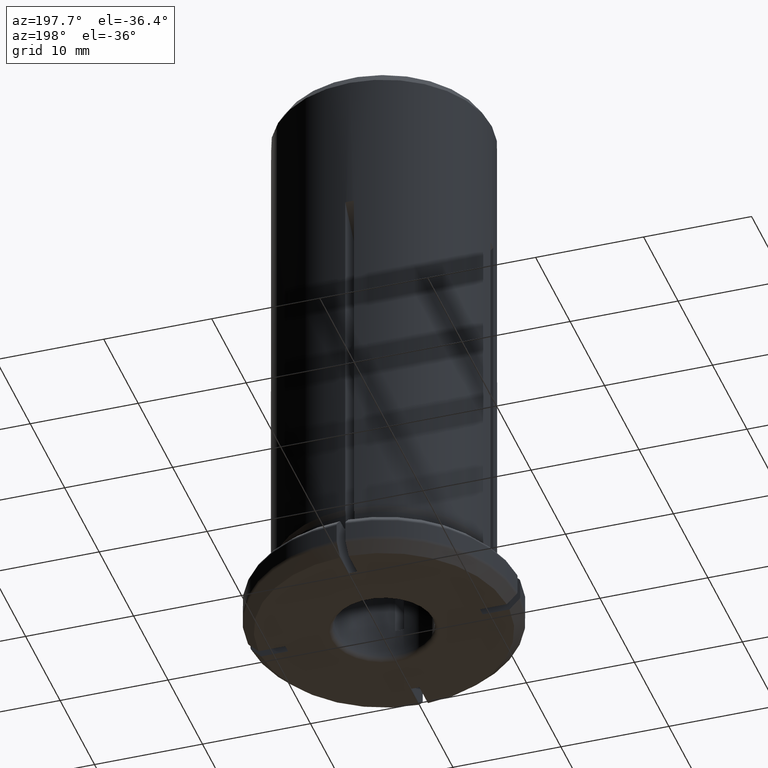
[diagram: clean part render]
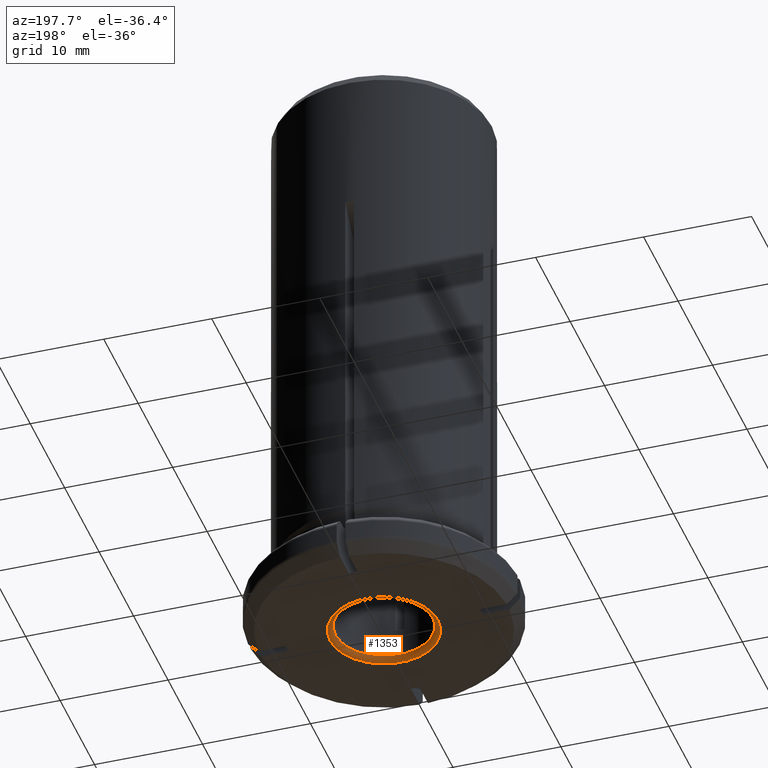
[diagram: same view with one face highlighted and labeled with its STEP entity id]
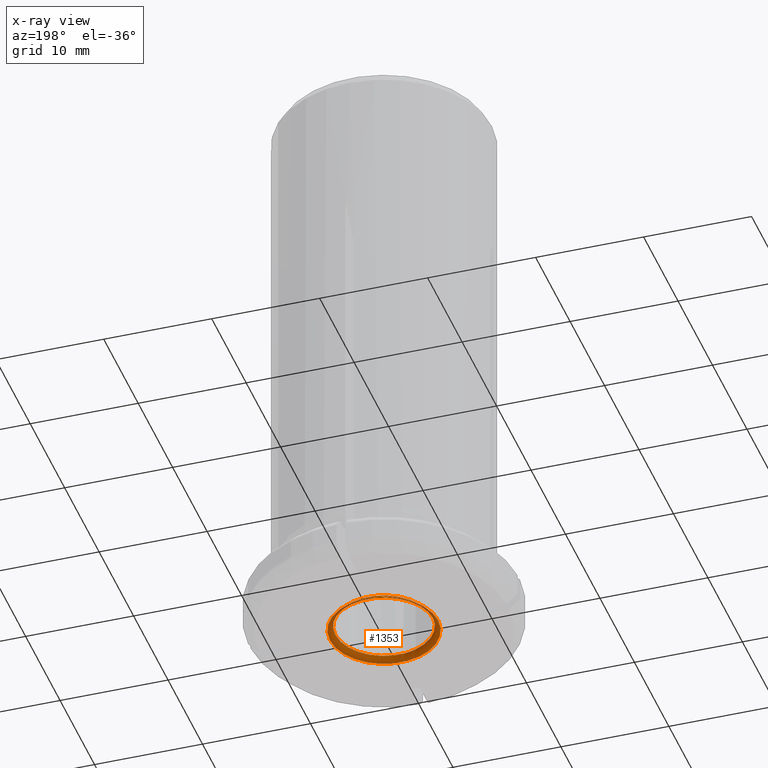
[diagram: x-ray of the same camera — body ghosted, the highlighted face saturated]
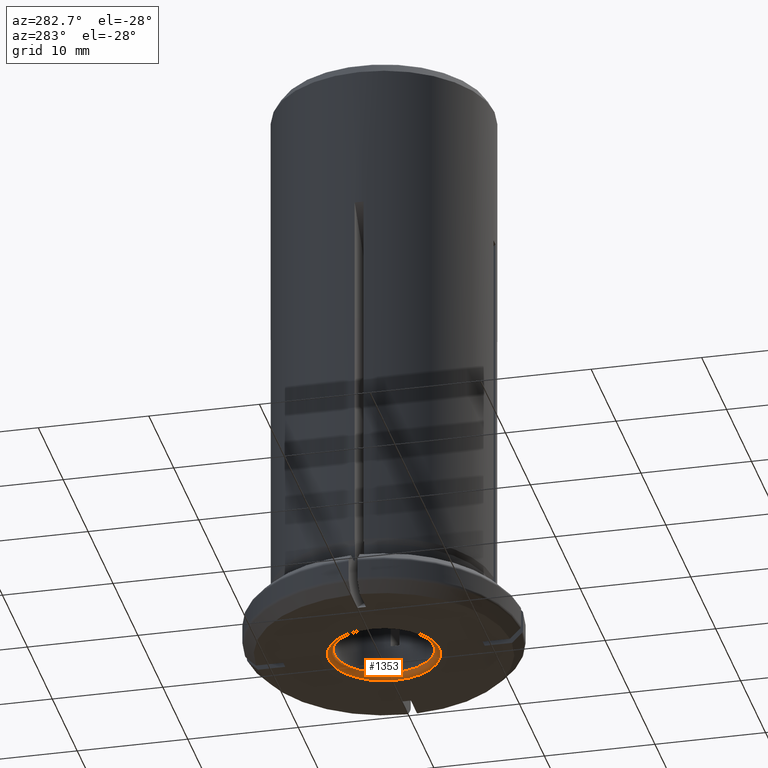
[diagram: same view with one face highlighted and labeled with its STEP entity id]
A machine part, auxiliary view. The second image highlights one B-rep face of the part: STEP entity #1353.
The next image is the same camera in x-ray: the body ghosted, the highlighted face saturated — about 0% of this face is hidden behind the body in this view.
A second angle (auxiliary view) of the same face is appended — the face is thin or edge-on in the first view.
In plain terms, the highlighted toroidal blend (fillet) surface has major radius 5 mm and minor (blend) radius 0.5 mm.
Its self-contained STEP definition (entity closure, byte-faithful):
#224=TOROIDAL_SURFACE('',#1511,5.,0.5);
#535=ORIENTED_EDGE('',*,*,#821,.F.);
#536=ORIENTED_EDGE('',*,*,#872,.F.);
#821=EDGE_CURVE('',#995,#995,#1081,.T.);
#872=EDGE_CURVE('',#1032,#1032,#1100,.F.);
#995=VERTEX_POINT('',#2294);
#1032=VERTEX_POINT('',#2443);
#1081=CIRCLE('',#1467,4.5);
#1100=CIRCLE('',#1505,5.);
#1173=EDGE_LOOP('',(#535));
#1174=EDGE_LOOP('',(#536));
#1263=FACE_BOUND('',#1173,.T.);
#1264=FACE_BOUND('',#1174,.T.);
#1353=ADVANCED_FACE('',(#1263,#1264),#224,.T.);
#1467=AXIS2_PLACEMENT_3D('',#2293,#1724,#1725);
#1505=AXIS2_PLACEMENT_3D('',#2442,#1818,#1819);
#1511=AXIS2_PLACEMENT_3D('',#2465,#1838,#1839);
#1724=DIRECTION('',(0.,0.,-1.));
#1725=DIRECTION('',(-1.,0.,0.));
#1818=DIRECTION('',(0.,0.,-1.));
#1819=DIRECTION('',(-1.,0.,0.));
#1838=DIRECTION('',(0.,0.,-1.));
#1839=DIRECTION('',(-1.,0.,0.));
#2293=CARTESIAN_POINT('',(0.,0.,-3.5));
#2294=CARTESIAN_POINT('',(-4.5,0.,-3.5));
#2442=CARTESIAN_POINT('',(0.,0.,-4.));
#2443=CARTESIAN_POINT('',(-5.,0.,-4.));
#2465=CARTESIAN_POINT('',(0.,0.,-3.5));